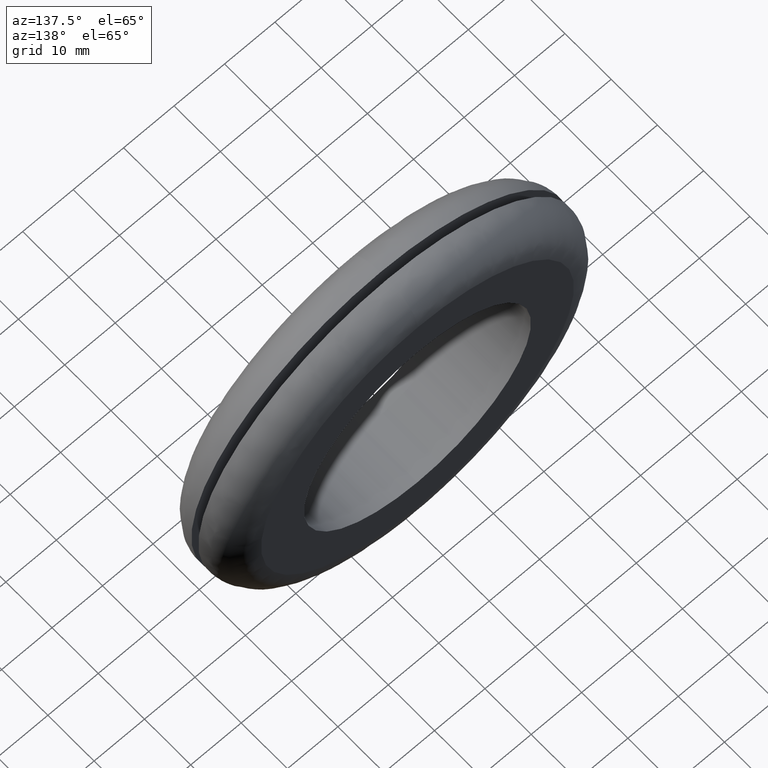
[diagram: clean part render]
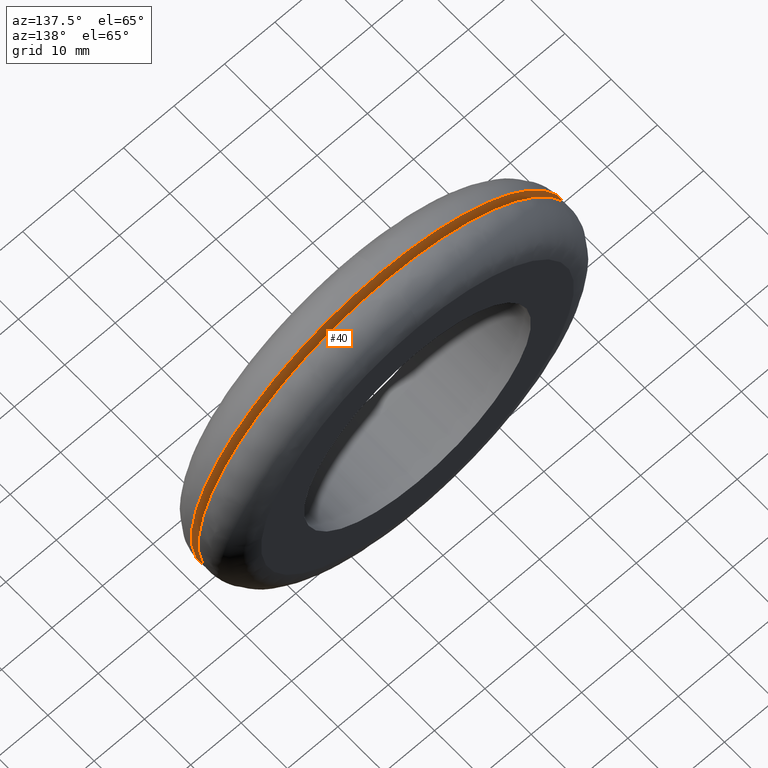
[diagram: same view with one face highlighted and labeled with its STEP entity id]
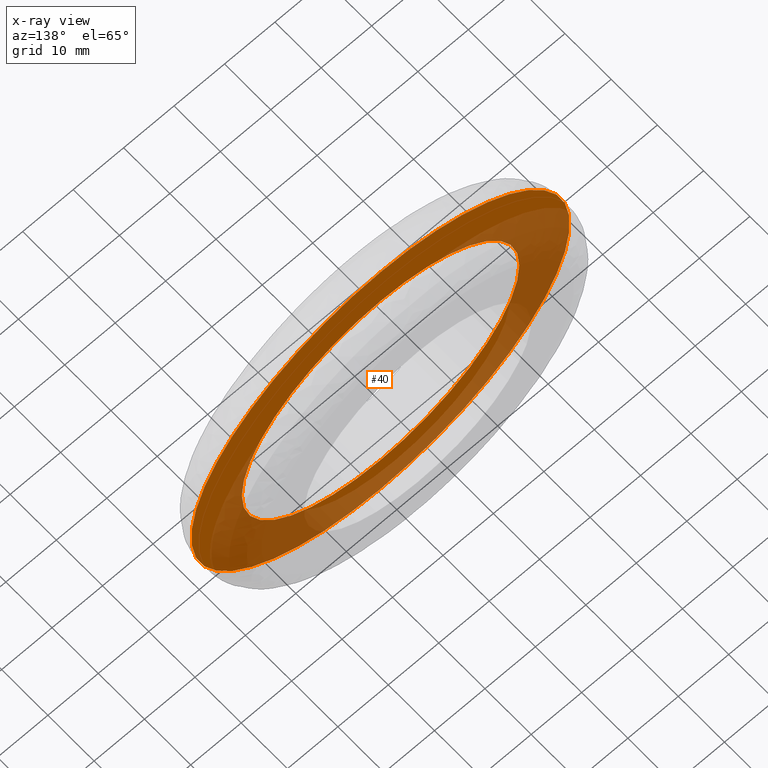
[diagram: x-ray of the same camera — body ghosted, the highlighted face saturated]
A machine part, auxiliary view. The second image highlights one B-rep face of the part: STEP entity #40.
The next image is the same camera in x-ray: the body ghosted, the highlighted face saturated — about 50% of this face is hidden behind the body in this view.
In plain terms, the highlighted planar face has unit normal (-0, 1, 0).
Its self-contained STEP definition (entity closure, byte-faithful):
#40=ADVANCED_FACE('',(#53,#54),#52,.T.);
#52=PLANE('',#179);
#53=FACE_OUTER_BOUND('',#180,.T.);
#54=FACE_BOUND('',#181,.T.);
#176=CARTESIAN_POINT('',(-7.49519052838E+001,6.50000000000E+000,-4.75000000000E+001));
#177=DIRECTION('',(-0.00000000000E+000,1.00000000000E+000,0.00000000000E+000));
#178=DIRECTION('',(0.00000000000E+000,0.00000000000E+000,1.00000000000E+000));
#179=AXIS2_PLACEMENT_3D('',#176,#177,#178);
#180=EDGE_LOOP('',(#324,#325));
#181=EDGE_LOOP('',(#326,#327));
#324=ORIENTED_EDGE('',*,*,#372,.T.);
#325=ORIENTED_EDGE('',*,*,#373,.T.);
#326=ORIENTED_EDGE('',*,*,#374,.F.);
#327=ORIENTED_EDGE('',*,*,#375,.F.);
#372=EDGE_CURVE('',#396,#397,#398,.T.);
#373=EDGE_CURVE('',#397,#396,#404,.T.);
#374=EDGE_CURVE('',#410,#411,#412,.T.);
#375=EDGE_CURVE('',#411,#410,#418,.T.);
#396=VERTEX_POINT('',#556);
#397=VERTEX_POINT('',#557);
#398=CIRCLE('',#561,3.75000000000E+001);
#404=CIRCLE('',#565,3.75000000000E+001);
#410=VERTEX_POINT('',#566);
#411=VERTEX_POINT('',#567);
#412=CIRCLE('',#571,2.75000000000E+001);
#418=CIRCLE('',#575,2.75000000000E+001);
#556=CARTESIAN_POINT('',(4.59227382683E-015,6.50000000000E+000,-3.75000000000E+001));
#557=CARTESIAN_POINT('',(2.36847578587E-015,6.50000000000E+000,3.75000000000E+001));
#558=CARTESIAN_POINT('',(0.00000000000E+000,6.50000000000E+000,0.00000000000E+000));
#559=DIRECTION('',(0.00000000000E+000,1.00000000000E+000,-0.00000000000E+000));
#560=DIRECTION('',(-0.00000000000E+000,-0.00000000000E+000,-1.00000000000E+000));
#561=AXIS2_PLACEMENT_3D('',#558,#559,#560);
#562=CARTESIAN_POINT('',(0.00000000000E+000,6.50000000000E+000,0.00000000000E+000));
#563=DIRECTION('',(0.00000000000E+000,1.00000000000E+000,-0.00000000000E+000));
#564=DIRECTION('',(-0.00000000000E+000,-0.00000000000E+000,-1.00000000000E+000));
#565=AXIS2_PLACEMENT_3D('',#562,#563,#564);
#566=CARTESIAN_POINT('',(0.00000000000E+000,6.50000000000E+000,-2.75000000000E+001));
#567=CARTESIAN_POINT('',(-4.55190536594E-015,6.50000000000E+000,2.75000000000E+001));
#568=CARTESIAN_POINT('',(0.00000000000E+000,6.50000000000E+000,0.00000000000E+000));
#569=DIRECTION('',(0.00000000000E+000,1.00000000000E+000,0.00000000000E+000));
#570=DIRECTION('',(-4.30631961065E-017,-0.00000000000E+000,1.00000000000E+000));
#571=AXIS2_PLACEMENT_3D('',#568,#569,#570);
#572=CARTESIAN_POINT('',(0.00000000000E+000,6.50000000000E+000,0.00000000000E+000));
#573=DIRECTION('',(0.00000000000E+000,1.00000000000E+000,0.00000000000E+000));
#574=DIRECTION('',(-4.30631961065E-017,-0.00000000000E+000,1.00000000000E+000));
#575=AXIS2_PLACEMENT_3D('',#572,#573,#574);